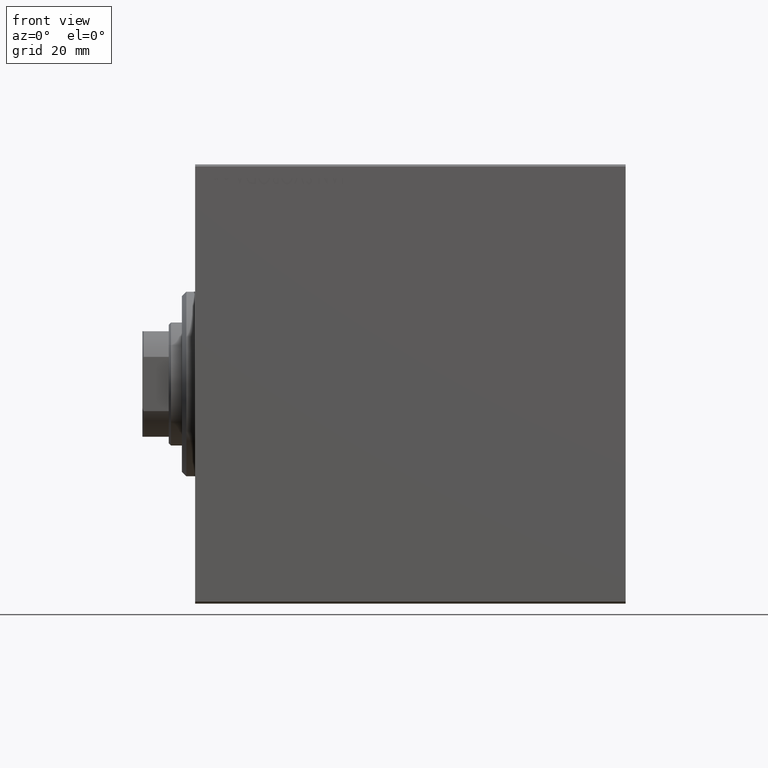
[diagram: clean part render]
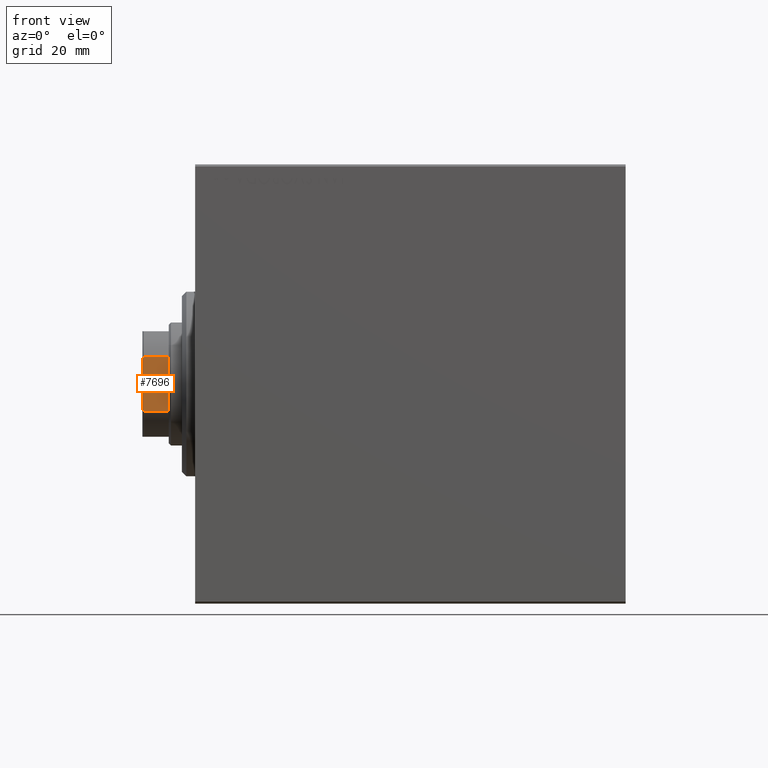
[diagram: same view with one face highlighted and labeled with its STEP entity id]
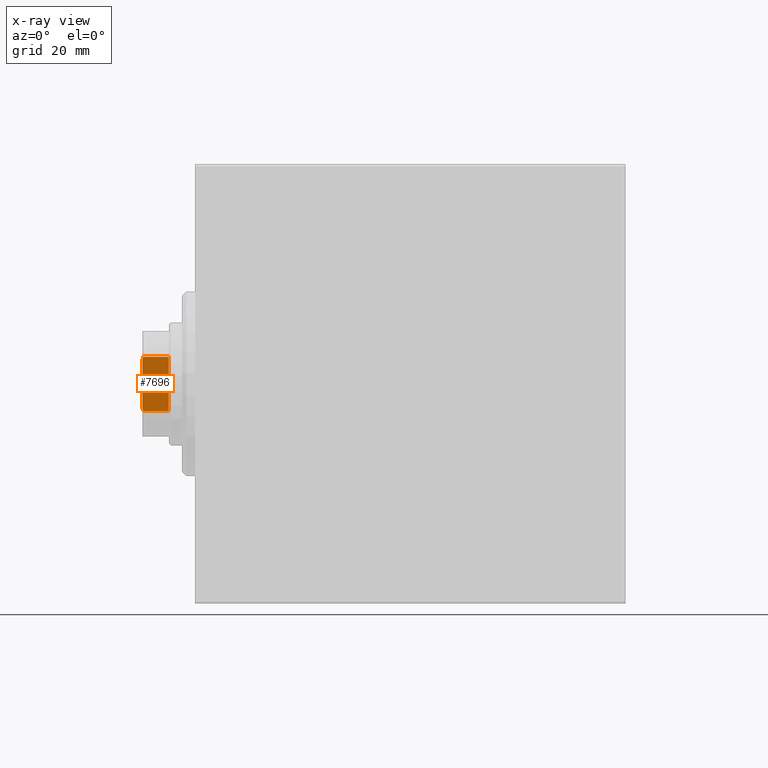
[diagram: x-ray of the same camera — body ghosted, the highlighted face saturated]
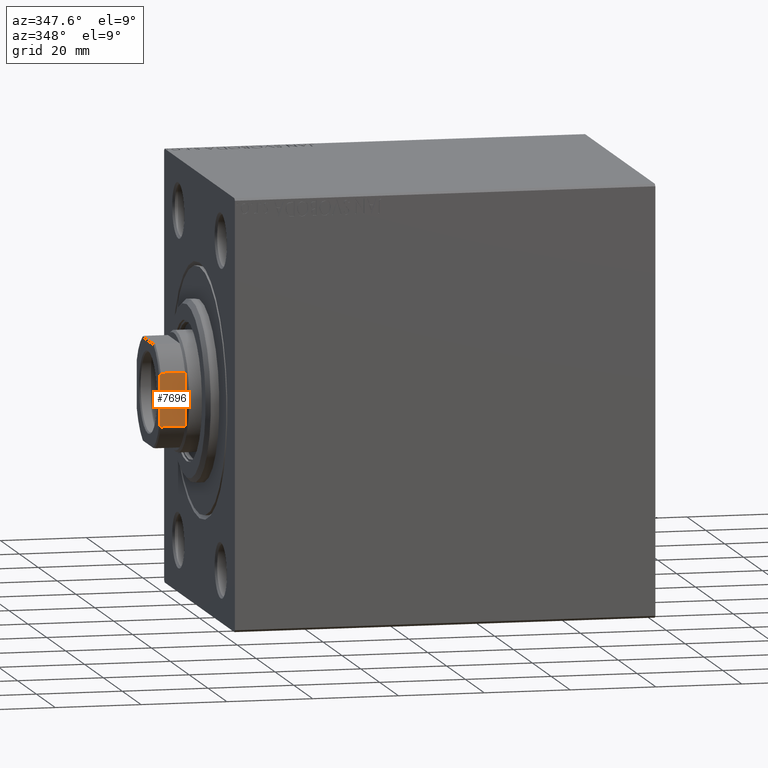
[diagram: same view with one face highlighted and labeled with its STEP entity id]
A machine part, front view. The second image highlights one B-rep face of the part: STEP entity #7696.
The next image is the same camera in x-ray: the body ghosted, the highlighted face saturated — about 0% of this face is hidden behind the body in this view.
A second angle (auxiliary view) of the same face is appended — the face is thin or edge-on in the first view.
In plain terms, the highlighted planar face has unit normal (0, 1, 0).
Its self-contained STEP definition (entity closure, byte-faithful):
#433 = LINE ( 'NONE', #6923, #3505 ) ;
#1113 = CARTESIAN_POINT ( 'NONE',  ( 6.184658438426501093, -11.99999999999999645, 89.99999999999998579 ) ) ;
#1239 = CARTESIAN_POINT ( 'NONE',  ( -5.499090833947052559, -12.00000000000000355, 96.00000000000000000 ) ) ;
#2873 = VERTEX_POINT ( 'NONE', #1113 ) ;
#3383 = EDGE_CURVE ( 'NONE', #22690, #4602, #11525, .T. ) ;
#3505 = VECTOR ( 'NONE', #10536, 1000.000000000000000 ) ;
#4602 = VERTEX_POINT ( 'NONE', #41857 ) ;
#6923 = CARTESIAN_POINT ( 'NONE',  ( -11.99999999999999822, -12.00000000000000355, 90.00000000000000000 ) ) ;
#7457 = VECTOR ( 'NONE', #11742, 1000.000000000000000 ) ;
#7696 = ADVANCED_FACE ( 'NONE', ( #9386 ), #36833, .F. ) ;
#7797 = CARTESIAN_POINT ( 'NONE',  ( 6.184658438426501093, -11.99999999999999645, 95.69999999999998863 ) ) ;
#9366 = B_SPLINE_CURVE_WITH_KNOTS ( 'NONE', 3,
 ( #7797, #35957, #21767, #39100 ),
 .UNSPECIFIED., .F., .F.,
 ( 4, 4 ),
 ( 0.000000000000000000, 0.0007483334419306215523 ),
 .UNSPECIFIED. ) ;
#9386 = FACE_OUTER_BOUND ( 'NONE', #32852, .T. ) ;
#9799 = VERTEX_POINT ( 'NONE', #22811 ) ;
#10536 = DIRECTION ( 'NONE',  ( 1.000000000000000000, 0.000000000000000000, 0.000000000000000000 ) ) ;
#11525 = LINE ( 'NONE', #21641, #7457 ) ;
#11643 = AXIS2_PLACEMENT_3D ( 'NONE', #17216, #13422, #34124 ) ;
#11742 = DIRECTION ( 'NONE',  ( 1.000000000000000000, 0.000000000000000000, 0.000000000000000000 ) ) ;
#11752 = LINE ( 'NONE', #14879, #16111 ) ;
#12592 = LINE ( 'NONE', #23592, #42259 ) ;
#12820 = DIRECTION ( 'NONE',  ( -0.000000000000000000, -0.000000000000000000, 1.000000000000000000 ) ) ;
#13422 = DIRECTION ( 'NONE',  ( 0.000000000000000000, 1.000000000000000000, 0.000000000000000000 ) ) ;
#14879 = CARTESIAN_POINT ( 'NONE',  ( 6.184658438426501093, -11.99999999999999645, -0.001000000000001000089 ) ) ;
#16111 = VECTOR ( 'NONE', #35379, 1000.000000000000000 ) ;
#17030 = VERTEX_POINT ( 'NONE', #28159 ) ;
#17216 = CARTESIAN_POINT ( 'NONE',  ( -11.99999999999999822, -12.00000000000000355, 96.00000000000000000 ) ) ;
#18789 = EDGE_CURVE ( 'NONE', #2873, #9799, #11752, .T. ) ;
#20268 = VERTEX_POINT ( 'NONE', #32588 ) ;
#21641 = CARTESIAN_POINT ( 'NONE',  ( -11.99999999999999822, -12.00000000000000355, 96.00000000000000000 ) ) ;
#21767 = CARTESIAN_POINT ( 'NONE',  ( 5.729389212963454270, -12.00000000000000355, 95.90405820415740834 ) ) ;
#22440 = ORIENTED_EDGE ( 'NONE', *, *, #24340, .T. ) ;
#22690 = VERTEX_POINT ( 'NONE', #1239 ) ;
#22811 = CARTESIAN_POINT ( 'NONE',  ( 6.184658438426501093, -11.99999999999999645, 95.69999999999998863 ) ) ;
#23592 = CARTESIAN_POINT ( 'NONE',  ( -6.184658438426501093, -11.99999999999999645, -0.001000000000001000089 ) ) ;
#24340 = EDGE_CURVE ( 'NONE', #9799, #4602, #9366, .T. ) ;
#28159 = CARTESIAN_POINT ( 'NONE',  ( -6.184658438426501093, -11.99999999999999645, 95.70000000000001705 ) ) ;
#28862 = B_SPLINE_CURVE_WITH_KNOTS ( 'NONE', 3,
 ( #33508, #33730, #33950, #30142 ),
 .UNSPECIFIED., .F., .F.,
 ( 4, 4 ),
 ( 0.000000000000000000, 0.0007483334419305857736 ),
 .UNSPECIFIED. ) ;
#30142 = CARTESIAN_POINT ( 'NONE',  ( -6.184658438426501093, -11.99999999999999645, 95.70000000000001705 ) ) ;
#32588 = CARTESIAN_POINT ( 'NONE',  ( -6.184658438426501093, -11.99999999999999645, 89.99999999999998579 ) ) ;
#32852 = EDGE_LOOP ( 'NONE', ( #35752, #22440, #39556, #36995, #44143, #39503 ) ) ;
#33508 = CARTESIAN_POINT ( 'NONE',  ( -5.499090833947052559, -12.00000000000000355, 96.00000000000000000 ) ) ;
#33730 = CARTESIAN_POINT ( 'NONE',  ( -5.729389212963472033, -12.00000000000000355, 95.90405820415742255 ) ) ;
#33950 = CARTESIAN_POINT ( 'NONE',  ( -5.957846001622733034, -12.00000000000000355, 95.80390795934954440 ) ) ;
#34124 = DIRECTION ( 'NONE',  ( 0.000000000000000000, -0.000000000000000000, 1.000000000000000000 ) ) ;
#35379 = DIRECTION ( 'NONE',  ( -0.000000000000000000, -0.000000000000000000, 1.000000000000000000 ) ) ;
#35752 = ORIENTED_EDGE ( 'NONE', *, *, #18789, .T. ) ;
#35957 = CARTESIAN_POINT ( 'NONE',  ( 5.957846001622724152, -11.99999999999999645, 95.80390795934953019 ) ) ;
#36833 = PLANE ( 'NONE',  #11643 ) ;
#36995 = ORIENTED_EDGE ( 'NONE', *, *, #43907, .T. ) ;
#39100 = CARTESIAN_POINT ( 'NONE',  ( 5.499090833947025914, -12.00000000000000355, 96.00000000000000000 ) ) ;
#39503 = ORIENTED_EDGE ( 'NONE', *, *, #42043, .T. ) ;
#39556 = ORIENTED_EDGE ( 'NONE', *, *, #3383, .F. ) ;
#41857 = CARTESIAN_POINT ( 'NONE',  ( 5.499090833947025914, -12.00000000000000355, 96.00000000000000000 ) ) ;
#41916 = EDGE_CURVE ( 'NONE', #20268, #17030, #12592, .T. ) ;
#42043 = EDGE_CURVE ( 'NONE', #20268, #2873, #433, .T. ) ;
#42259 = VECTOR ( 'NONE', #12820, 1000.000000000000000 ) ;
#43907 = EDGE_CURVE ( 'NONE', #22690, #17030, #28862, .T. ) ;
#44143 = ORIENTED_EDGE ( 'NONE', *, *, #41916, .F. ) ;